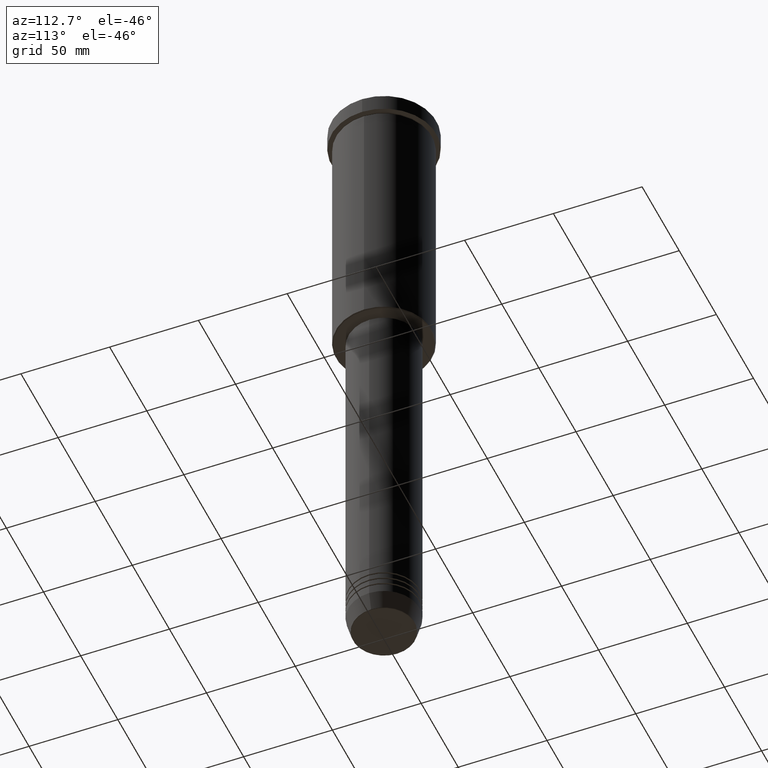
[diagram: clean part render]
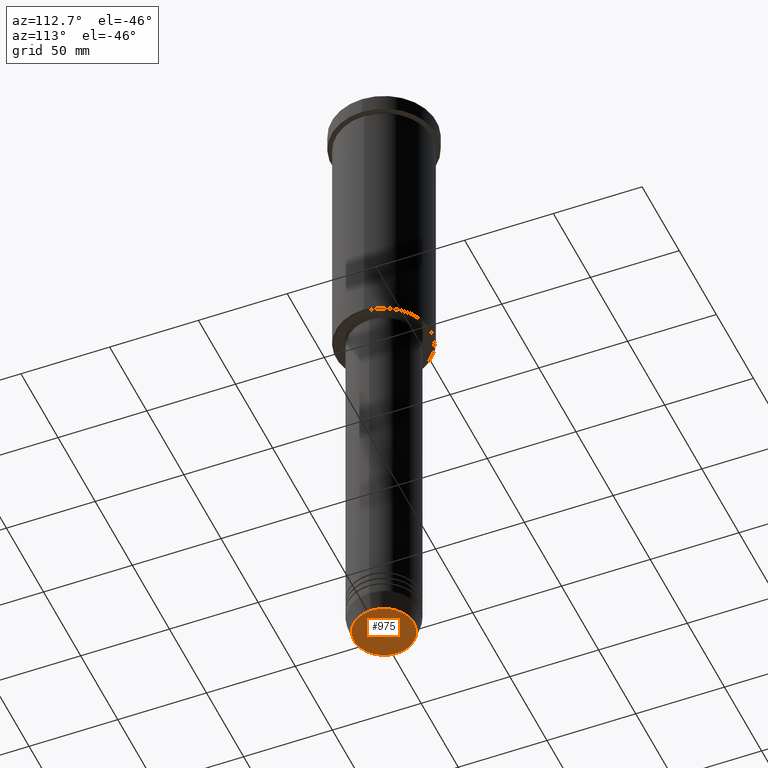
[diagram: same view with one face highlighted and labeled with its STEP entity id]
A machine part, auxiliary view. The second image highlights one B-rep face of the part: STEP entity #975.
In plain terms, the highlighted planar face has unit normal (0, -0, 1).
Its self-contained STEP definition (entity closure, byte-faithful):
#73 = DIRECTION ( 'NONE',  ( 1.000000000000000000, 0.000000000000000000, 0.000000000000000000 ) ) ;
#160 = PLANE ( 'NONE',  #515 ) ;
#195 = CIRCLE ( 'NONE', #865, 16.93684458169928675 ) ;
#311 = CARTESIAN_POINT ( 'NONE',  ( -16.93684458169928675, 2.103738199747889592E-15, -371.0000000000000000 ) ) ;
#347 = AXIS2_PLACEMENT_3D ( 'NONE', #385, #905, #452 ) ;
#385 = CARTESIAN_POINT ( 'NONE',  ( 0.000000000000000000, 0.000000000000000000, -371.0000000000000000 ) ) ;
#386 = CIRCLE ( 'NONE', #347, 16.93684458169928675 ) ;
#431 = CARTESIAN_POINT ( 'NONE',  ( 0.000000000000000000, 0.000000000000000000, -371.0000000000000000 ) ) ;
#452 = DIRECTION ( 'NONE',  ( 1.000000000000000000, 0.000000000000000000, 0.000000000000000000 ) ) ;
#515 = AXIS2_PLACEMENT_3D ( 'NONE', #694, #1063, #73 ) ;
#606 = ORIENTED_EDGE ( 'NONE', *, *, #968, .T. ) ;
#609 = CARTESIAN_POINT ( 'NONE',  ( 16.93684458169928675, 0.000000000000000000, -371.0000000000000000 ) ) ;
#678 = VERTEX_POINT ( 'NONE', #609 ) ;
#694 = CARTESIAN_POINT ( 'NONE',  ( 0.000000000000000000, 0.000000000000000000, -371.0000000000000000 ) ) ;
#696 = ORIENTED_EDGE ( 'NONE', *, *, #1115, .T. ) ;
#865 = AXIS2_PLACEMENT_3D ( 'NONE', #431, #876, #1056 ) ;
#871 = VERTEX_POINT ( 'NONE', #311 ) ;
#876 = DIRECTION ( 'NONE',  ( 0.000000000000000000, 0.000000000000000000, -1.000000000000000000 ) ) ;
#905 = DIRECTION ( 'NONE',  ( 0.000000000000000000, 0.000000000000000000, -1.000000000000000000 ) ) ;
#968 = EDGE_CURVE ( 'NONE', #871, #678, #195, .T. ) ;
#969 = EDGE_LOOP ( 'NONE', ( #696, #606 ) ) ;
#975 = ADVANCED_FACE ( 'NONE', ( #1148 ), #160, .F. ) ;
#1056 = DIRECTION ( 'NONE',  ( 1.000000000000000000, 0.000000000000000000, 0.000000000000000000 ) ) ;
#1063 = DIRECTION ( 'NONE',  ( 0.000000000000000000, -0.000000000000000000, 1.000000000000000000 ) ) ;
#1115 = EDGE_CURVE ( 'NONE', #678, #871, #386, .T. ) ;
#1148 = FACE_OUTER_BOUND ( 'NONE', #969, .T. ) ;